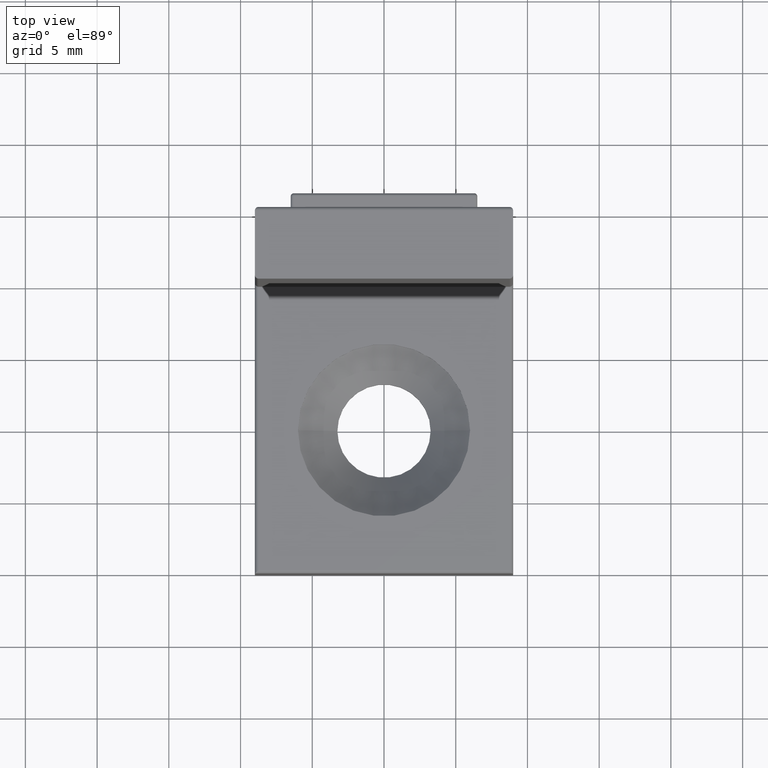
[diagram: clean part render]
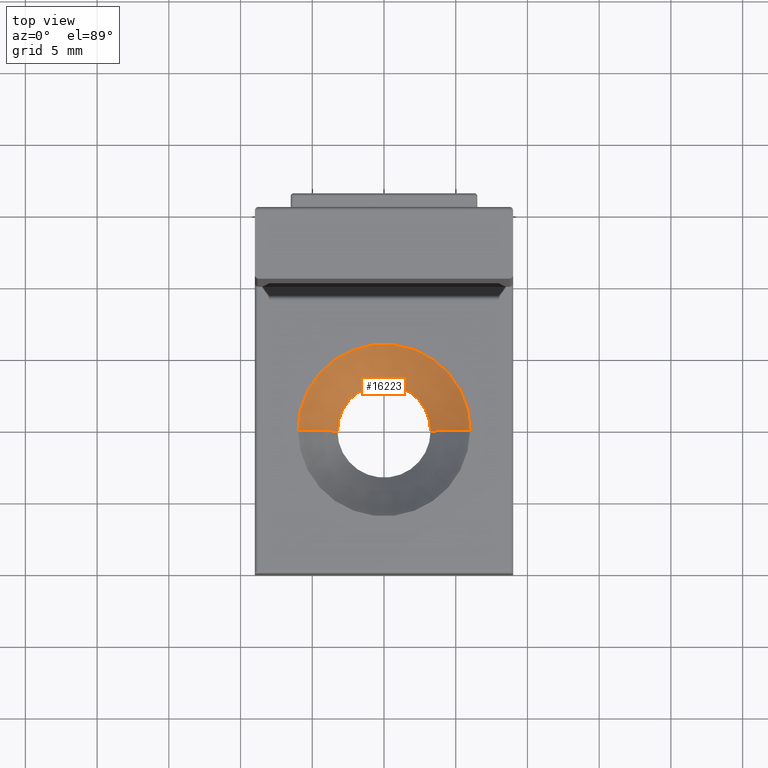
[diagram: same view with one face highlighted and labeled with its STEP entity id]
A machine part, top view. The second image highlights one B-rep face of the part: STEP entity #16223.
In plain terms, the highlighted conical surface has half-angle 45 deg.
Its self-contained STEP definition (entity closure, byte-faithful):
#90 = CARTESIAN_POINT ( 'NONE',  ( -5.999999999999998200, -15.00000000000000000, 7.000000000000000900 ) ) ;
#224 = VERTEX_POINT ( 'NONE', #8185 ) ;
#528 = FACE_OUTER_BOUND ( 'NONE', #16580, .T. ) ;
#1344 = EDGE_CURVE ( 'NONE', #11435, #8192, #2227, .T. ) ;
#2227 = LINE ( 'NONE', #3861, #10843 ) ;
#3275 = CIRCLE ( 'NONE', #7229, 3.250000000000000900 ) ;
#3480 = ORIENTED_EDGE ( 'NONE', *, *, #8843, .T. ) ;
#3554 = VECTOR ( 'NONE', #4909, 999.9999999999998900 ) ;
#3566 = CARTESIAN_POINT ( 'NONE',  ( 1.836970198721029600E-015, -15.00000000000000000, 4.250000000000002700 ) ) ;
#3861 = CARTESIAN_POINT ( 'NONE',  ( 6.000000000000001800, -15.00000000000000000, 7.000000000000000900 ) ) ;
#4028 = ORIENTED_EDGE ( 'NONE', *, *, #14632, .F. ) ;
#4568 = CONICAL_SURFACE ( 'NONE', #10035, 6.000000000000000000, 0.7853981633974485000 ) ;
#4862 = DIRECTION ( 'NONE',  ( 1.000000000000000000, 0.0000000000000000000, 0.0000000000000000000 ) ) ;
#4909 = DIRECTION ( 'NONE',  ( -0.7071067811865477900, 8.659560562354936600E-017, 0.7071067811865473500 ) ) ;
#5193 = DIRECTION ( 'NONE',  ( -0.0000000000000000000, -0.0000000000000000000, 1.000000000000000000 ) ) ;
#5297 = CARTESIAN_POINT ( 'NONE',  ( 1.836970198721029600E-015, -15.00000000000000000, 7.000000000000000900 ) ) ;
#5667 = CARTESIAN_POINT ( 'NONE',  ( 6.000000000000001800, -15.00000000000000000, 7.000000000000000900 ) ) ;
#5888 = CARTESIAN_POINT ( 'NONE',  ( 1.836970198721029600E-015, -15.00000000000000000, 7.000000000000000900 ) ) ;
#6978 = LINE ( 'NONE', #12597, #3554 ) ;
#7229 = AXIS2_PLACEMENT_3D ( 'NONE', #3566, #12550, #4862 ) ;
#8185 = CARTESIAN_POINT ( 'NONE',  ( -3.249999999999999100, -15.00000000000000000, 4.250000000000002700 ) ) ;
#8192 = VERTEX_POINT ( 'NONE', #5667 ) ;
#8444 = DIRECTION ( 'NONE',  ( -0.0000000000000000000, -0.0000000000000000000, 1.000000000000000000 ) ) ;
#8447 = VERTEX_POINT ( 'NONE', #90 ) ;
#8843 = EDGE_CURVE ( 'NONE', #8192, #8447, #13451, .T. ) ;
#10035 = AXIS2_PLACEMENT_3D ( 'NONE', #5888, #8444, #15163 ) ;
#10843 = VECTOR ( 'NONE', #12859, 999.9999999999998900 ) ;
#11058 = EDGE_CURVE ( 'NONE', #224, #8447, #6978, .T. ) ;
#11435 = VERTEX_POINT ( 'NONE', #12929 ) ;
#12550 = DIRECTION ( 'NONE',  ( -0.0000000000000000000, -0.0000000000000000000, 1.000000000000000000 ) ) ;
#12597 = CARTESIAN_POINT ( 'NONE',  ( -5.999999999999998200, -15.00000000000000000, 7.000000000000000900 ) ) ;
#12695 = ORIENTED_EDGE ( 'NONE', *, *, #1344, .T. ) ;
#12859 = DIRECTION ( 'NONE',  ( 0.7071067811865477900, 0.0000000000000000000, 0.7071067811865473500 ) ) ;
#12929 = CARTESIAN_POINT ( 'NONE',  ( 3.250000000000002700, -15.00000000000000000, 4.250000000000002700 ) ) ;
#13451 = CIRCLE ( 'NONE', #14490, 6.000000000000000000 ) ;
#14166 = ORIENTED_EDGE ( 'NONE', *, *, #11058, .F. ) ;
#14490 = AXIS2_PLACEMENT_3D ( 'NONE', #5297, #5193, #15374 ) ;
#14632 = EDGE_CURVE ( 'NONE', #11435, #224, #3275, .T. ) ;
#15163 = DIRECTION ( 'NONE',  ( 1.000000000000000000, 0.0000000000000000000, 0.0000000000000000000 ) ) ;
#15374 = DIRECTION ( 'NONE',  ( 1.000000000000000000, 0.0000000000000000000, 0.0000000000000000000 ) ) ;
#16223 = ADVANCED_FACE ( 'NONE', ( #528 ), #4568, .F. ) ;
#16580 = EDGE_LOOP ( 'NONE', ( #14166, #4028, #12695, #3480 ) ) ;